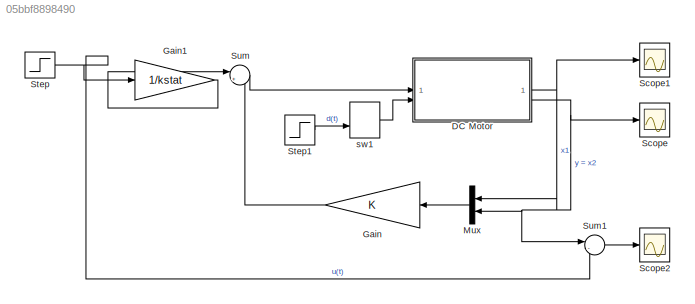
MODEL slx_05bbf8898490
KIND model
CONFIG AbsTol = auto
CONFIG EnableMultiTasking = on
CONFIG FixedStep = 0.001
CONFIG MaxStep = auto
CONFIG MinStep = auto
CONFIG RelTol = 1e-3
CONFIG SampleTimeConstraint = Unconstrained
CONFIG SolverName = ode3
CONFIG StartTime = 0.0
CONFIG StopTime = tend
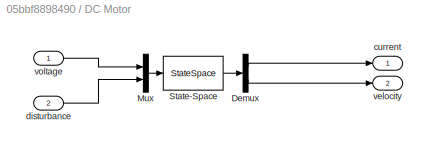
BLOCK [SubSystem] DC Motor
BLOCK [Demux] DC Motor/Demux
  Outputs = 2
BLOCK [Mux] DC Motor/Mux
  DisplayOption = bar
  Inputs = 2
BLOCK [StateSpace] DC Motor/State-Space
  A = [-3/0.05, -2.23/0.05; 2.23/0.11, 0]
  B = [1/0.05 0; 0 -1/0.11]
  C = [1 0;0 1]
  D = [0 0; 0 0]
  InitialCondition = [0 ;40]
BLOCK [Outport] DC Motor/current
  VectorParamsAs1DForOutWhenUnconnected = off
BLOCK [Inport] DC Motor/disturbance
  Port = 2
BLOCK [Outport] DC Motor/velocity
  Port = 2
  VectorParamsAs1DForOutWhenUnconnected = off
BLOCK [Inport] DC Motor/voltage
BLOCK [Gain] Gain
  Gain = K
  Multiplication = Matrix(K*u) (u vector)
  NameLocation = top
BLOCK [Gain] Gain1
  Gain = 1/kstat
BLOCK [Mux] Mux
  DisplayOption = bar
  Inputs = 2
  NameLocation = top
BLOCK [Scope] Scope
  ActiveDisplayYMaximum = 315.87984890212135
  ActiveDisplayYMinimum = 9.3466834553198552
  Floating = off
  GraphicalSettings = {"Style":{"BackgroundColor":[0.12941176470588237,0.12941176470588237,0.12941176470588237],"AxesColor":[0.07058823529411765,0.07058823529411765,0.07058823529411765],"LabelsColor":[0.8509803921568627,0.8509803921568627,0.8509803921568627],"PreserveColors":false,"Visible":[true],"LineStyle":["-"],"LineWidth":[1.5],"BarWidth":[0.9],"LineColor":["auto"],"LineFaceAlpha":[1],"LineEdgeAlpha":[1],"Marker":...<+2030ch>
  MultipleDisplayCache = [{"MaxYLimMag":315.87984890212135,"MaxYLimReal":315.87984890212135,"MinYLimMag":9.3466834553198552,"MinYLimReal":9.3466834553198552,"PlotAsMagnitudePhase":false,"ShowGrid":true,"ShowLegend":false,"Title":"%<SignalLabel>","YLabel":""}]
  NumInputPorts = 1
  ScopeFrameLocation = window
  WasSavedAsWebScope = on
  WindowPosition = [838.000000,318.000000,560.000000,420.000000,]
BLOCK [Scope] Scope1
  ActiveDisplayYMaximum = 228.45364208015326
  ActiveDisplayYMinimum = -25.502807712796564
  DataLoggingVariableName = ScopeData1
  Floating = off
  GraphicalSettings = {"Style":{"BackgroundColor":[0.12941176470588237,0.12941176470588237,0.12941176470588237],"AxesColor":[0.07058823529411765,0.07058823529411765,0.07058823529411765],"LabelsColor":[0.8509803921568627,0.8509803921568627,0.8509803921568627],"PreserveColors":false,"Visible":[true],"LineStyle":["-"],"LineWidth":[1.5],"BarWidth":[0.9],"LineColor":["auto"],"LineFaceAlpha":[1],"LineEdgeAlpha":[1],"Marker":...<+1988ch>
  MultipleDisplayCache = [{"MaxYLimMag":228.45364208015326,"MaxYLimReal":228.45364208015326,"MinYLimMag":0,"MinYLimReal":-25.502807712796564,"PlotAsMagnitudePhase":false,"ShowGrid":true,"ShowLegend":false,"Title":"%<SignalLabel>","YLabel":""}]
  NumInputPorts = 1
  ScopeFrameLocation = window
  WasSavedAsWebScope = on
  WindowPosition = [247.000000,334.000000,560.000000,420.000000,]
BLOCK [Scope] Scope2
  ActiveDisplayYMaximum = 290.65331654468014
  ActiveDisplayYMinimum = -15.87984890212136
  DataLoggingVariableName = ScopeData2
  Floating = off
  GraphicalSettings = {"Style":{"BackgroundColor":[0.12941176470588237,0.12941176470588237,0.12941176470588237],"AxesColor":[0.07058823529411765,0.07058823529411765,0.07058823529411765],"LabelsColor":[0.8509803921568627,0.8509803921568627,0.8509803921568627],"PreserveColors":false,"Visible":[true],"LineStyle":["-"],"LineWidth":[1.5],"BarWidth":[0.9],"LineColor":["auto"],"LineFaceAlpha":[1],"LineEdgeAlpha":[1],"Marker":...<+1990ch>
  MultipleDisplayCache = [{"MaxYLimMag":290.65331654468014,"MaxYLimReal":290.65331654468014,"MinYLimMag":0,"MinYLimReal":-15.87984890212136,"PlotAsMagnitudePhase":false,"ShowGrid":true,"ShowLegend":false,"Title":"%<SignalLabel>","YLabel":""}]
  NumInputPorts = 1
  ScopeFrameLocation = window
  WasSavedAsWebScope = on
  WindowPosition = [104.000000,511.000000,560.000000,420.000000,]
BLOCK [Step] Step
  After = 300
  SampleTime = 0
  Time = 0
BLOCK [Step] Step1
  After = 50
  SampleTime = 0
  Time = tend/2
BLOCK [Sum] Sum
  Inputs = |+-
BLOCK [Sum] Sum1
  Inputs = |-+
BLOCK [ManualSwitch] sw1
LINE DC Motor/Demux:1 -> DC Motor/current:1
LINE DC Motor/Demux:2 -> DC Motor/velocity:1
LINE DC Motor/Mux:1 -> DC Motor/State-Space:1
LINE DC Motor/State-Space:1 -> DC Motor/Demux:1
LINE DC Motor/disturbance:1 -> DC Motor/Mux:2
LINE DC Motor/voltage:1 -> DC Motor/Mux:1
NET DC Motor:1 -> Mux:1, Scope1:1
NET DC Motor:2 -> Mux:2, Scope:1, Sum1:1
LINE Gain1:1 -> Sum:1
LINE Gain:1 -> Sum:2
LINE Mux:1 -> Gain:1
LINE Step1:1 -> sw1:2
NET Step:1 -> Gain1:1, Sum1:2
LINE Sum1:1 -> Scope2:1
LINE Sum:1 -> DC Motor:1
LINE sw1:1 -> DC Motor:2
note: NET lines group one-source signal fan-out (src -> all destinations, sorted); 1:1 wires keep LINE
